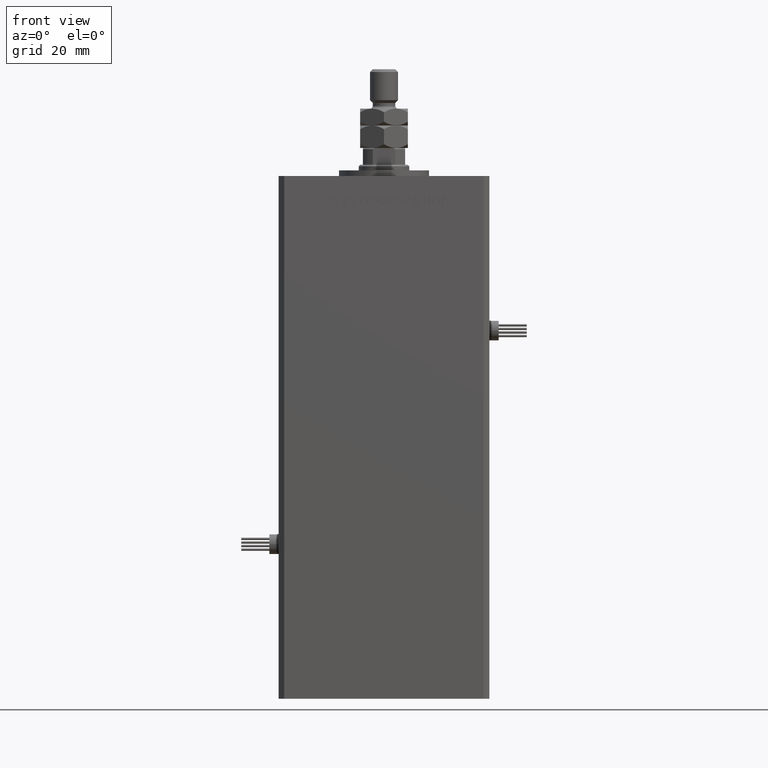
[diagram: clean part render]
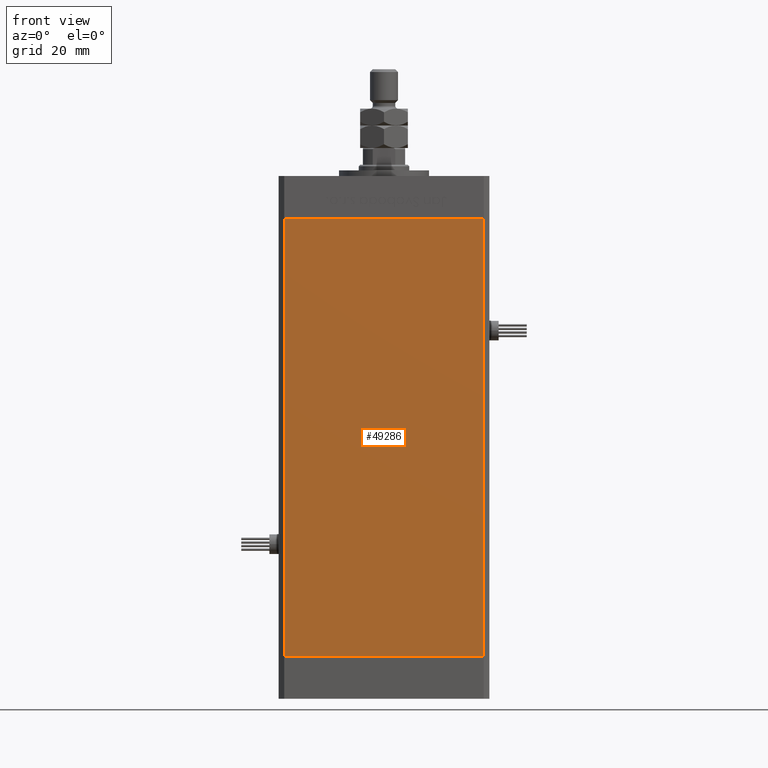
[diagram: same view with one face highlighted and labeled with its STEP entity id]
A machine part, front view. The second image highlights one B-rep face of the part: STEP entity #49286.
In plain terms, the highlighted planar face has unit normal (0, 1, 0).
Its self-contained STEP definition (entity closure, byte-faithful):
#178 = DIRECTION ( 'NONE',  ( 1.000000000000000000, 0.000000000000000000, 0.000000000000000000 ) ) ;
#2294 = VECTOR ( 'NONE', #44058, 1000.000000000000000 ) ;
#2297 = DIRECTION ( 'NONE',  ( 0.000000000000000000, -0.000000000000000000, 1.000000000000000000 ) ) ;
#2880 = CARTESIAN_POINT ( 'NONE',  ( -35.49999999999999289, -32.50000000000000000, 156.0000000000000000 ) ) ;
#3366 = LINE ( 'NONE', #34066, #19732 ) ;
#3937 = ORIENTED_EDGE ( 'NONE', *, *, #8492, .F. ) ;
#6355 = EDGE_LOOP ( 'NONE', ( #10219, #3937, #14219, #50714 ) ) ;
#8492 = EDGE_CURVE ( 'NONE', #51910, #32789, #13331, .T. ) ;
#8768 = CARTESIAN_POINT ( 'NONE',  ( -35.49999999999999289, -32.50000000000000000, 0.000000000000000000 ) ) ;
#9562 = FACE_OUTER_BOUND ( 'NONE', #6355, .T. ) ;
#10219 = ORIENTED_EDGE ( 'NONE', *, *, #44128, .T. ) ;
#11181 = PLANE ( 'NONE',  #56394 ) ;
#11336 = CARTESIAN_POINT ( 'NONE',  ( -35.49999999999999289, -32.50000000000000000, 156.0000000000000000 ) ) ;
#13331 = LINE ( 'NONE', #13899, #2294 ) ;
#13899 = CARTESIAN_POINT ( 'NONE',  ( 35.49999999999999289, -32.50000000000000000, 156.0000000000000000 ) ) ;
#14219 = ORIENTED_EDGE ( 'NONE', *, *, #49656, .F. ) ;
#17594 = VERTEX_POINT ( 'NONE', #46197 ) ;
#19732 = VECTOR ( 'NONE', #21119, 1000.000000000000000 ) ;
#21119 = DIRECTION ( 'NONE',  ( 1.000000000000000000, 0.000000000000000000, 0.000000000000000000 ) ) ;
#21957 = LINE ( 'NONE', #8768, #34211 ) ;
#23025 = LINE ( 'NONE', #23303, #43819 ) ;
#23303 = CARTESIAN_POINT ( 'NONE',  ( -35.49999999999999289, -32.50000000000000000, 156.0000000000000000 ) ) ;
#25888 = EDGE_CURVE ( 'NONE', #47082, #17594, #23025, .T. ) ;
#32789 = VERTEX_POINT ( 'NONE', #40678 ) ;
#33385 = CARTESIAN_POINT ( 'NONE',  ( 35.49999999999999289, -32.50000000000000000, 156.0000000000000000 ) ) ;
#34066 = CARTESIAN_POINT ( 'NONE',  ( -35.49999999999999289, -32.50000000000000000, 156.0000000000000000 ) ) ;
#34211 = VECTOR ( 'NONE', #178, 1000.000000000000000 ) ;
#40678 = CARTESIAN_POINT ( 'NONE',  ( 35.49999999999999289, -32.50000000000000000, 0.000000000000000000 ) ) ;
#41887 = DIRECTION ( 'NONE',  ( 0.000000000000000000, 1.000000000000000000, 0.000000000000000000 ) ) ;
#43819 = VECTOR ( 'NONE', #50282, 1000.000000000000000 ) ;
#44058 = DIRECTION ( 'NONE',  ( -0.000000000000000000, -0.000000000000000000, -1.000000000000000000 ) ) ;
#44128 = EDGE_CURVE ( 'NONE', #17594, #32789, #21957, .T. ) ;
#46197 = CARTESIAN_POINT ( 'NONE',  ( -35.49999999999999289, -32.50000000000000000, 0.000000000000000000 ) ) ;
#47082 = VERTEX_POINT ( 'NONE', #11336 ) ;
#49286 = ADVANCED_FACE ( 'NONE', ( #9562 ), #11181, .F. ) ;
#49656 = EDGE_CURVE ( 'NONE', #47082, #51910, #3366, .T. ) ;
#50282 = DIRECTION ( 'NONE',  ( -0.000000000000000000, -0.000000000000000000, -1.000000000000000000 ) ) ;
#50714 = ORIENTED_EDGE ( 'NONE', *, *, #25888, .T. ) ;
#51910 = VERTEX_POINT ( 'NONE', #33385 ) ;
#56394 = AXIS2_PLACEMENT_3D ( 'NONE', #2880, #41887, #2297 ) ;